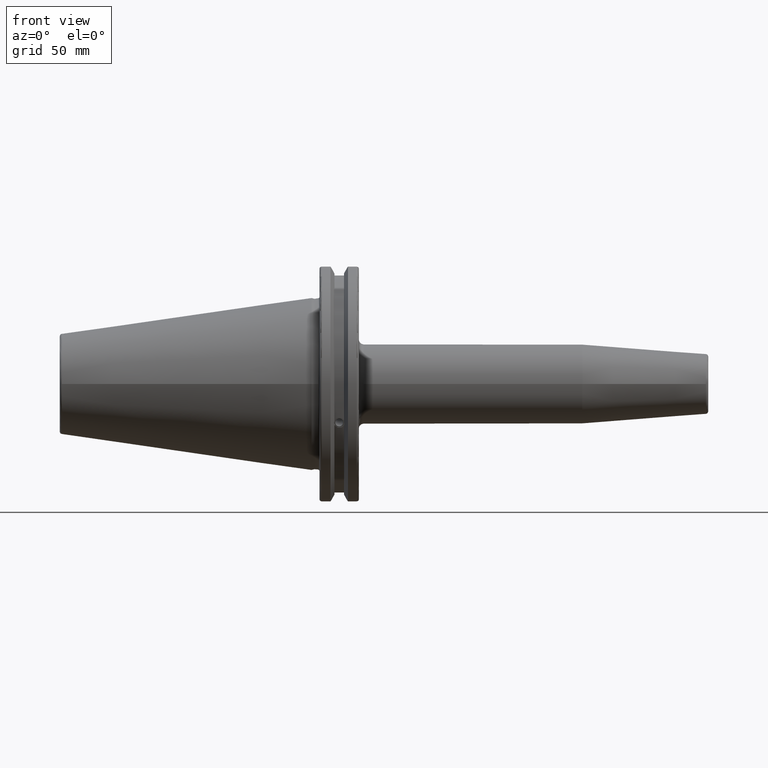
[diagram: clean part render]
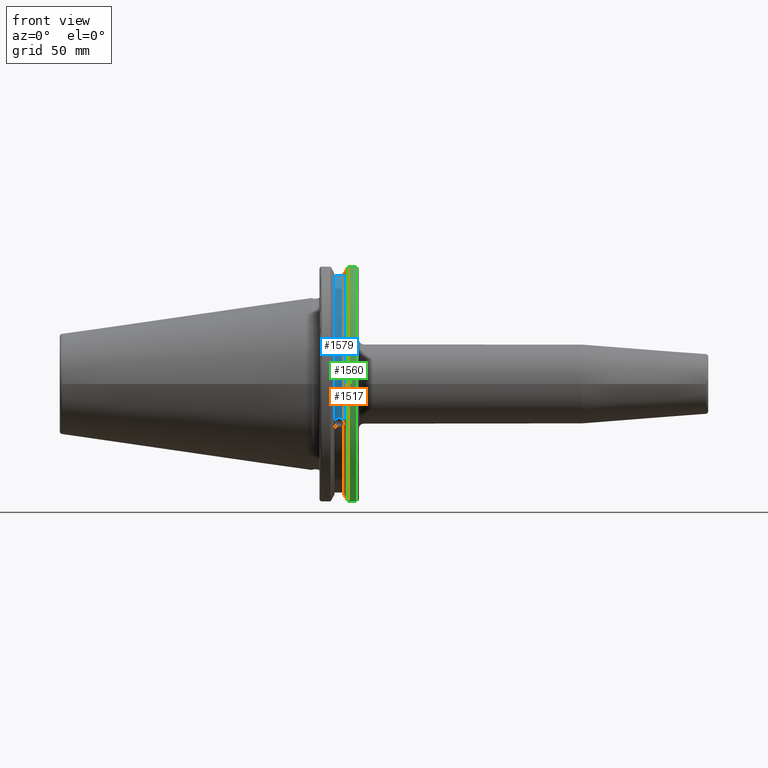
[diagram: same view with three faces highlighted in distinct colors, each labeled with its STEP entity id]
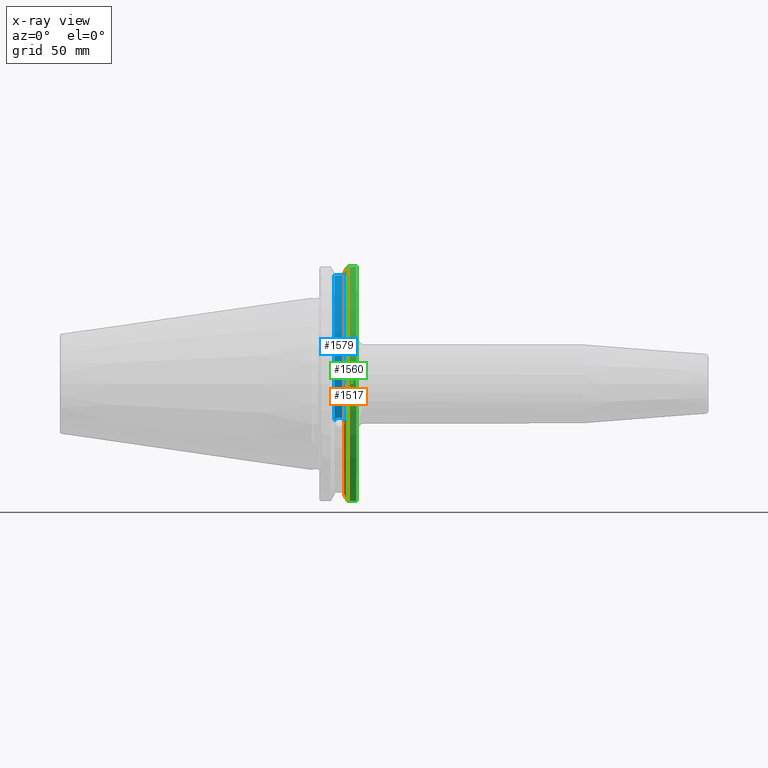
[diagram: x-ray of the same camera — body ghosted, the three highlighted faces saturated]
A machine part, front view with three faces highlighted in distinct colors.
The next image is the same camera in x-ray (body ghosted, the three faces saturated) — at least one of them is partly hidden behind the body in this view.
Their STEP definitions:

[orange] entity #1517 — the highlighted conical surface has half-angle 60 deg.
#15=(
BOUNDED_CURVE()
B_SPLINE_CURVE(2,(#2574,#2575,#2576),.UNSPECIFIED.,.F.,.F.)
B_SPLINE_CURVE_WITH_KNOTS((3,3),(0.,0.275823910673374),.UNSPECIFIED.)
CURVE()
GEOMETRIC_REPRESENTATION_ITEM()
RATIONAL_B_SPLINE_CURVE((1.,1.00038235574978,1.00012873636953))
REPRESENTATION_ITEM('')
);
#16=(
BOUNDED_CURVE()
B_SPLINE_CURVE(2,(#2578,#2579,#2580),.UNSPECIFIED.,.F.,.F.)
B_SPLINE_CURVE_WITH_KNOTS((3,3),(0.,0.0648240472896156),.UNSPECIFIED.)
CURVE()
GEOMETRIC_REPRESENTATION_ITEM()
RATIONAL_B_SPLINE_CURVE((1.,1.00011477674884,1.00019140646027))
REPRESENTATION_ITEM('')
);
#17=(
BOUNDED_CURVE()
B_SPLINE_CURVE(2,(#2584,#2585,#2586),.UNSPECIFIED.,.F.,.F.)
B_SPLINE_CURVE_WITH_KNOTS((3,3),(0.325260944932494,0.3900849922222),
 .UNSPECIFIED.)
CURVE()
GEOMETRIC_REPRESENTATION_ITEM()
RATIONAL_B_SPLINE_CURVE((1.00019140645961,1.00011477674844,1.))
REPRESENTATION_ITEM('')
);
#18=(
BOUNDED_CURVE()
B_SPLINE_CURVE(2,(#2588,#2589,#2590),.UNSPECIFIED.,.F.,.F.)
B_SPLINE_CURVE_WITH_KNOTS((3,3),(0.0558332664531015,0.331657177124503),
 .UNSPECIFIED.)
CURVE()
GEOMETRIC_REPRESENTATION_ITEM()
RATIONAL_B_SPLINE_CURVE((1.00012873636668,1.00038235574129,1.))
REPRESENTATION_ITEM('')
);
#39=B_SPLINE_CURVE_WITH_KNOTS('',3,(#2483,#2484,#2485,#2486,#2487,#2488,
#2489,#2490),.UNSPECIFIED.,.F.,.F.,(4,2,2,4),(0.42671286835872,0.441644498666905,
0.480313313223129,0.518982127779353),.UNSPECIFIED.);
#43=B_SPLINE_CURVE_WITH_KNOTS('',3,(#2545,#2546,#2547,#2548,#2549,#2550,
#2551,#2552),.UNSPECIFIED.,.F.,.F.,(4,2,2,4),(0.518982127779353,0.557650942335576,
0.5963197568918,0.611251387199985),.UNSPECIFIED.);
#194=FACE_OUTER_BOUND('',#295,.T.);
#295=EDGE_LOOP('',(#1142,#1143,#1144,#1145,#1146,#1147,#1148,#1149,#1150));
#588=CIRCLE('',#1660,46.4219772964944);
#589=CIRCLE('',#1661,49.2125);
#590=CIRCLE('',#1662,46.4219772964944);
#680=VERTEX_POINT('',#2480);
#681=VERTEX_POINT('',#2482);
#688=VERTEX_POINT('',#2543);
#694=VERTEX_POINT('',#2571);
#695=VERTEX_POINT('',#2573);
#696=VERTEX_POINT('',#2577);
#697=VERTEX_POINT('',#2581);
#698=VERTEX_POINT('',#2583);
#699=VERTEX_POINT('',#2587);
#848=EDGE_CURVE('',#681,#680,#39,.T.);
#856=EDGE_CURVE('',#680,#688,#43,.T.);
#864=EDGE_CURVE('',#688,#694,#588,.T.);
#865=EDGE_CURVE('',#694,#695,#15,.T.);
#866=EDGE_CURVE('',#696,#695,#16,.T.);
#867=EDGE_CURVE('',#697,#696,#589,.T.);
#868=EDGE_CURVE('',#698,#697,#17,.T.);
#869=EDGE_CURVE('',#698,#699,#18,.T.);
#870=EDGE_CURVE('',#699,#681,#590,.T.);
#1142=ORIENTED_EDGE('',*,*,#848,.T.);
#1143=ORIENTED_EDGE('',*,*,#856,.T.);
#1144=ORIENTED_EDGE('',*,*,#864,.T.);
#1145=ORIENTED_EDGE('',*,*,#865,.T.);
#1146=ORIENTED_EDGE('',*,*,#866,.F.);
#1147=ORIENTED_EDGE('',*,*,#867,.F.);
#1148=ORIENTED_EDGE('',*,*,#868,.F.);
#1149=ORIENTED_EDGE('',*,*,#869,.T.);
#1150=ORIENTED_EDGE('',*,*,#870,.T.);
#1482=CONICAL_SURFACE('',#1659,47.8172386482472,1.0471975511966);
#1517=ADVANCED_FACE('',(#194),#1482,.T.);
#1659=AXIS2_PLACEMENT_3D('',#2570,#1915,#1916);
#1660=AXIS2_PLACEMENT_3D('',#2572,#1917,#1918);
#1661=AXIS2_PLACEMENT_3D('',#2582,#1919,#1920);
#1662=AXIS2_PLACEMENT_3D('',#2591,#1921,#1922);
#1915=DIRECTION('center_axis',(1.,0.,0.));
#1916=DIRECTION('ref_axis',(0.,-1.,-1.22464679914735E-16));
#1917=DIRECTION('center_axis',(1.,0.,0.));
#1918=DIRECTION('ref_axis',(0.,0.,-1.));
#1919=DIRECTION('center_axis',(1.,0.,0.));
#1920=DIRECTION('ref_axis',(0.,0.,-1.));
#1921=DIRECTION('center_axis',(1.,0.,0.));
#1922=DIRECTION('ref_axis',(0.,0.,-1.));
#2480=CARTESIAN_POINT('',(13.2341,-43.923494649906,-15.9868446375166));
#2482=CARTESIAN_POINT('',(13.0491,-43.9096390749305,-15.0646464421033));
#2483=CARTESIAN_POINT('Ctrl Pts',(13.0491,-43.9096390749305,-15.0646464421033));
#2484=CARTESIAN_POINT('Ctrl Pts',(13.0660815609661,-43.9250360001461,-15.1104047527575));
#2485=CARTESIAN_POINT('Ctrl Pts',(13.0821132459668,-43.9385582852181,-15.1564111356409));
#2486=CARTESIAN_POINT('Ctrl Pts',(13.1358132615496,-43.9797830409459,-15.3217566390708));
#2487=CARTESIAN_POINT('Ctrl Pts',(13.1719838933644,-43.9989016655819,-15.4570249042868));
#2488=CARTESIAN_POINT('Ctrl Pts',(13.2212913174802,-43.9931221605126,-15.7289849146254));
#2489=CARTESIAN_POINT('Ctrl Pts',(13.2341,-43.9675796948952,-15.8657219718732));
#2490=CARTESIAN_POINT('Ctrl Pts',(13.2341,-43.923494649906,-15.9868446375166));
#2543=CARTESIAN_POINT('',(13.0491,-43.3201030900029,-16.6843832486479));
#2545=CARTESIAN_POINT('Ctrl Pts',(13.2341,-43.923494649906,-15.9868446375166));
#2546=CARTESIAN_POINT('Ctrl Pts',(13.2341,-43.8794096049169,-16.10796730316));
#2547=CARTESIAN_POINT('Ctrl Pts',(13.2212913174802,-43.8110833825827,-16.2291323464527));
#2548=CARTESIAN_POINT('Ctrl Pts',(13.1719838933644,-43.6406982153492,-16.441180795372));
#2549=CARTESIAN_POINT('Ctrl Pts',(13.1358132615496,-43.5391037343221,-16.5325130832406));
#2550=CARTESIAN_POINT('Ctrl Pts',(13.0821132459668,-43.4012416983557,-16.6326763251437));
#2551=CARTESIAN_POINT('Ctrl Pts',(13.0660815609661,-43.3613106941341,-16.6592273018006));
#2552=CARTESIAN_POINT('Ctrl Pts',(13.0491,-43.3201030900029,-16.6843832486479));
#2570=CARTESIAN_POINT('Origin',(13.8546545170244,0.,0.));
#2571=CARTESIAN_POINT('',(13.0491,-12.95,-44.5791147973604));
#2572=CARTESIAN_POINT('Origin',(13.0491,0.,0.));
#2573=CARTESIAN_POINT('',(14.3818103943757,-12.95,-46.9780755322917));
#2574=CARTESIAN_POINT('Ctrl Pts',(13.0491,-12.95,-44.5791147973604));
#2575=CARTESIAN_POINT('Ctrl Pts',(13.697995509466,-12.95,-45.749496680259));
#2576=CARTESIAN_POINT('Ctrl Pts',(14.3818103943757,-12.95,-46.9780755322917));
#2577=CARTESIAN_POINT('',(14.6602090340487,-13.4317035994433,-47.3440544806494));
#2578=CARTESIAN_POINT('Ctrl Pts',(14.6602090340487,-13.4317035994433,-47.3440544806494));
#2579=CARTESIAN_POINT('Ctrl Pts',(14.5199310333617,-13.1896660169964,-47.1601640966263));
#2580=CARTESIAN_POINT('Ctrl Pts',(14.3818103943757,-12.95,-46.9780755322917));
#2581=CARTESIAN_POINT('',(14.6602090340487,-13.4317035994433,47.3440544806494));
#2582=CARTESIAN_POINT('Origin',(14.6602090340487,0.,0.));
#2583=CARTESIAN_POINT('',(14.3818103943757,-12.95,46.9780755322918));
#2584=CARTESIAN_POINT('Ctrl Pts',(14.3818103943757,-12.95,46.9780755322918));
#2585=CARTESIAN_POINT('Ctrl Pts',(14.5199310333617,-13.1896660169966,47.1601640966264));
#2586=CARTESIAN_POINT('Ctrl Pts',(14.6602090340487,-13.4317035994433,47.3440544806494));
#2587=CARTESIAN_POINT('',(13.0491,-12.95,44.5791147973604));
#2588=CARTESIAN_POINT('Ctrl Pts',(14.3818103943757,-12.95,46.9780755322918));
#2589=CARTESIAN_POINT('Ctrl Pts',(13.6979955094846,-12.95,45.7494966802924));
#2590=CARTESIAN_POINT('Ctrl Pts',(13.0491,-12.95,44.5791147973604));
#2591=CARTESIAN_POINT('Origin',(13.0491,0.,0.));

[blue] entity #1579 — the highlighted cylindrical surface (partial cylindrical patch) has radius 45.6435 mm, axis along (1, 0, 0).
#40=B_SPLINE_CURVE_WITH_KNOTS('',3,(#2494,#2495,#2496,#2497,#2498,#2499,
#2500,#2501,#2502,#2503,#2504,#2505,#2506,#2507),.UNSPECIFIED.,.F.,.F.,
(4,2,2,2,2,2,4),(0.40154831257669,0.474697095495631,0.553813286063443,0.632929476631254,
0.712045667199066,0.791161857766877,0.864310640685818),.UNSPECIFIED.);
#168=CYLINDRICAL_SURFACE('',#1769,45.6435);
#256=FACE_OUTER_BOUND('',#367,.T.);
#367=EDGE_LOOP('',(#1469,#1470,#1471,#1472));
#436=LINE('',#2981,#532);
#532=VECTOR('',#2061,10.);
#634=CIRCLE('',#1768,45.6435);
#635=CIRCLE('',#1770,45.6435);
#682=VERTEX_POINT('',#2491);
#683=VERTEX_POINT('',#2493);
#764=VERTEX_POINT('',#2978);
#765=VERTEX_POINT('',#2980);
#850=EDGE_CURVE('',#683,#682,#40,.T.);
#959=EDGE_CURVE('',#765,#764,#436,.T.);
#1017=EDGE_CURVE('',#764,#683,#634,.T.);
#1018=EDGE_CURVE('',#765,#682,#635,.T.);
#1469=ORIENTED_EDGE('',*,*,#850,.T.);
#1470=ORIENTED_EDGE('',*,*,#1018,.F.);
#1471=ORIENTED_EDGE('',*,*,#959,.T.);
#1472=ORIENTED_EDGE('',*,*,#1017,.T.);
#1579=ADVANCED_FACE('',(#256),#168,.T.);
#1768=AXIS2_PLACEMENT_3D('',#3147,#2198,#2199);
#1769=AXIS2_PLACEMENT_3D('',#3148,#2200,#2201);
#1770=AXIS2_PLACEMENT_3D('',#3149,#2202,#2203);
#2061=DIRECTION('',(-1.,0.,0.));
#2198=DIRECTION('center_axis',(1.,0.,0.));
#2199=DIRECTION('ref_axis',(0.,0.,-1.));
#2200=DIRECTION('center_axis',(1.,0.,0.));
#2201=DIRECTION('ref_axis',(0.,-0.888619069115281,0.458645996390125));
#2202=DIRECTION('center_axis',(1.,0.,0.));
#2203=DIRECTION('ref_axis',(0.,0.,-1.));
#2491=CARTESIAN_POINT('',(13.0491,-43.1779814500336,-14.7983448449669));
#2493=CARTESIAN_POINT('',(9.2191,-43.1779814500336,-14.7983448449669));
#2494=CARTESIAN_POINT('Ctrl Pts',(9.2191,-43.1779814500335,-14.7983448449669));
#2495=CARTESIAN_POINT('Ctrl Pts',(9.32532177598176,-43.2545173750974,-14.5750315766731));
#2496=CARTESIAN_POINT('Ctrl Pts',(9.47680807557665,-43.3223492818373,-14.3712521044637));
#2497=CARTESIAN_POINT('Ctrl Pts',(9.83560503400179,-43.4340904392251,-14.0300988117073));
#2498=CARTESIAN_POINT('Ctrl Pts',(10.0717203280543,-43.4832903960863,-13.8760243976176));
#2499=CARTESIAN_POINT('Ctrl Pts',(10.5891059167872,-43.54802519266,-13.6715068146718));
#2500=CARTESIAN_POINT('Ctrl Pts',(10.870379364774,-43.5636826100883,-13.6211104428929));
#2501=CARTESIAN_POINT('Ctrl Pts',(11.397820635226,-43.5636826100883,-13.6211104428929));
#2502=CARTESIAN_POINT('Ctrl Pts',(11.6790940832128,-43.54802519266,-13.6715068146718));
#2503=CARTESIAN_POINT('Ctrl Pts',(12.1964796719457,-43.4832903960863,-13.8760243976176));
#2504=CARTESIAN_POINT('Ctrl Pts',(12.4325949659982,-43.4340904392251,-14.0300988117073));
#2505=CARTESIAN_POINT('Ctrl Pts',(12.7913919244233,-43.3223492818373,-14.3712521044637));
#2506=CARTESIAN_POINT('Ctrl Pts',(12.9428782240182,-43.2545173750974,-14.5750315766731));
#2507=CARTESIAN_POINT('Ctrl Pts',(13.0491,-43.1779814500335,-14.7983448449669));
#2978=CARTESIAN_POINT('',(9.2191,-12.95,43.7678716897452));
#2980=CARTESIAN_POINT('',(13.0491,-12.95,43.7678716897452));
#2981=CARTESIAN_POINT('',(11.1341,-12.95,43.7678716897452));
#3147=CARTESIAN_POINT('Origin',(9.2191,0.,0.));
#3148=CARTESIAN_POINT('Origin',(11.1341,0.,0.));
#3149=CARTESIAN_POINT('Origin',(13.0491,0.,0.));

[green] entity #1560 — the highlighted cylindrical surface (partial cylindrical patch) has radius 49.2125 mm, axis along (1, 0, 0).
#162=CYLINDRICAL_SURFACE('',#1740,49.2125);
#237=FACE_OUTER_BOUND('',#346,.T.);
#346=EDGE_LOOP('',(#1386,#1387,#1388,#1389));
#456=LINE('',#3101,#552);
#457=LINE('',#3103,#553);
#552=VECTOR('',#2133,10.);
#553=VECTOR('',#2136,10.);
#589=CIRCLE('',#1661,49.2125);
#615=CIRCLE('',#1712,49.2125);
#696=VERTEX_POINT('',#2577);
#697=VERTEX_POINT('',#2581);
#759=VERTEX_POINT('',#2944);
#760=VERTEX_POINT('',#2953);
#867=EDGE_CURVE('',#697,#696,#589,.T.);
#952=EDGE_CURVE('',#759,#760,#615,.T.);
#998=EDGE_CURVE('',#760,#696,#456,.T.);
#999=EDGE_CURVE('',#697,#759,#457,.T.);
#1386=ORIENTED_EDGE('',*,*,#952,.F.);
#1387=ORIENTED_EDGE('',*,*,#999,.F.);
#1388=ORIENTED_EDGE('',*,*,#867,.T.);
#1389=ORIENTED_EDGE('',*,*,#998,.F.);
#1560=ADVANCED_FACE('',(#237),#162,.T.);
#1661=AXIS2_PLACEMENT_3D('',#2582,#1919,#1920);
#1712=AXIS2_PLACEMENT_3D('',#2954,#2054,#2055);
#1740=AXIS2_PLACEMENT_3D('',#3102,#2134,#2135);
#1919=DIRECTION('center_axis',(1.,0.,0.));
#1920=DIRECTION('ref_axis',(0.,0.,-1.));
#2054=DIRECTION('center_axis',(1.,0.,0.));
#2055=DIRECTION('ref_axis',(0.,-1.,1.60812264967664E-16));
#2133=DIRECTION('',(-1.,0.,0.));
#2134=DIRECTION('center_axis',(1.,0.,0.));
#2135=DIRECTION('ref_axis',(0.,-1.,1.22464679914735E-16));
#2136=DIRECTION('',(1.,0.,0.));
#2577=CARTESIAN_POINT('',(14.6602090340487,-13.4317035994433,-47.3440544806494));
#2581=CARTESIAN_POINT('',(14.6602090340487,-13.4317035994433,47.3440544806494));
#2582=CARTESIAN_POINT('Origin',(14.6602090340487,0.,0.));
#2944=CARTESIAN_POINT('',(18.05,-13.4317035994433,47.3440544806494));
#2953=CARTESIAN_POINT('',(18.05,-13.4317035994433,-47.3440544806494));
#2954=CARTESIAN_POINT('Origin',(18.05,0.,0.));
#3101=CARTESIAN_POINT('',(16.8551045170244,-13.4317035994433,-47.3440544806494));
#3102=CARTESIAN_POINT('Origin',(16.8551045170244,0.,0.));
#3103=CARTESIAN_POINT('',(16.8551045170244,-13.4317035994433,47.3440544806494));